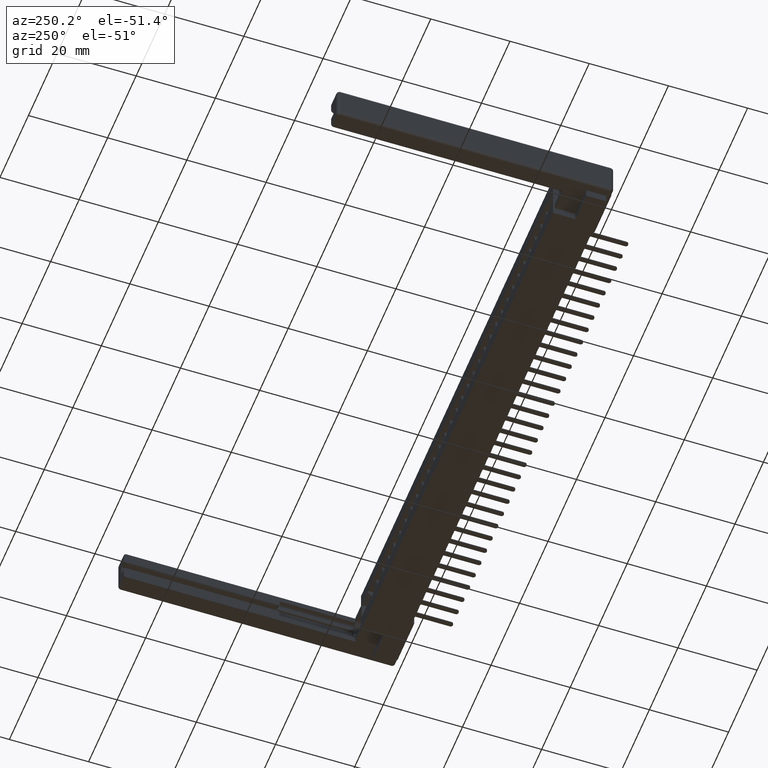
[diagram: clean part render]
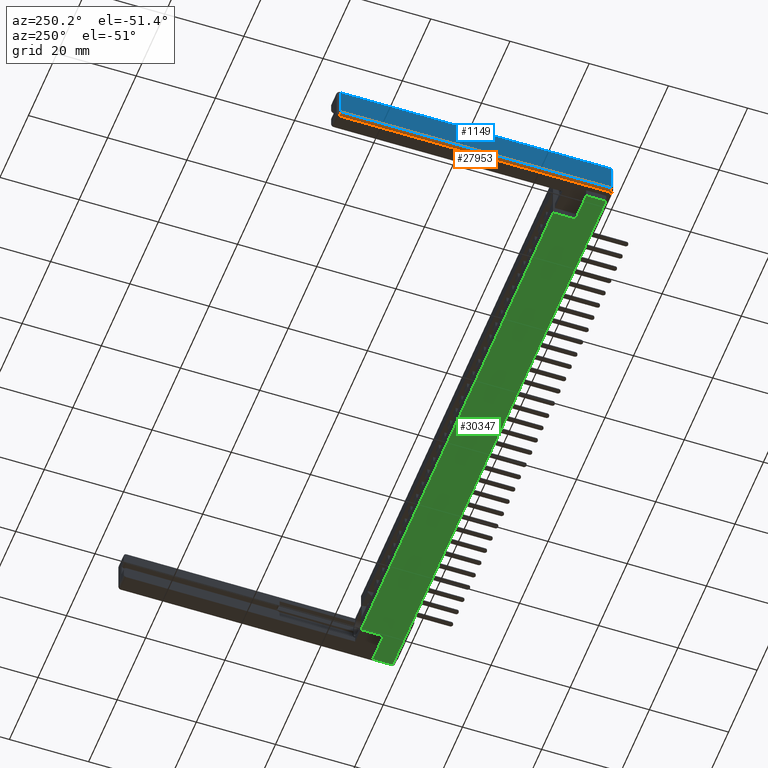
[diagram: same view with three faces highlighted in distinct colors, each labeled with its STEP entity id]
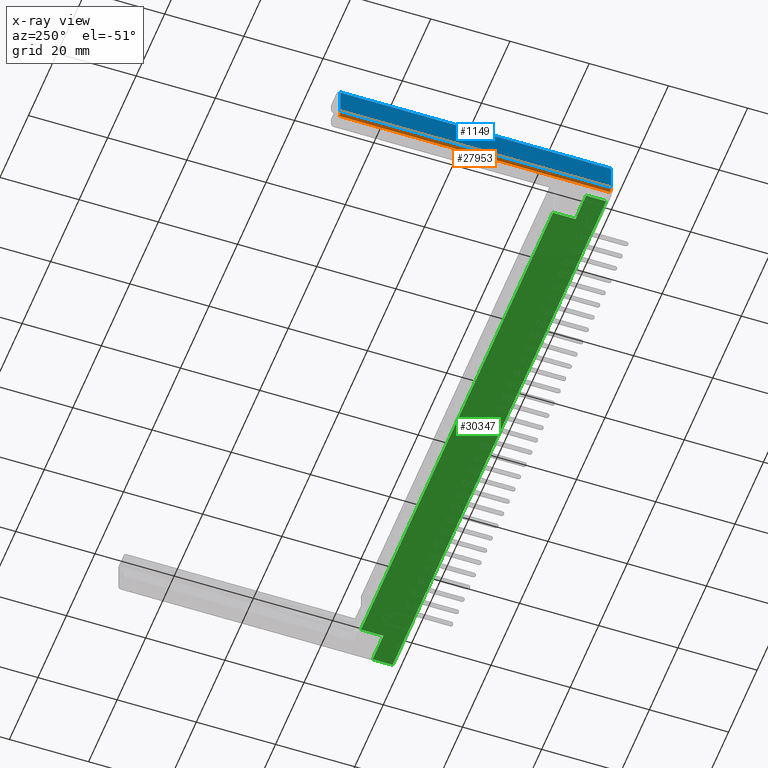
[diagram: x-ray of the same camera — body ghosted, the three highlighted faces saturated]
A machine part, auxiliary view with three faces highlighted in distinct colors.
The next image is the same camera in x-ray (body ghosted, the three faces saturated) — at least one of them is partly hidden behind the body in this view.
Their STEP definitions:

[orange] entity #27953 — the highlighted cylindrical surface (edge-blend (fillet) strip) has radius 0.762 mm, axis along (0, -1, 0).
#485 = VERTEX_POINT ( 'NONE', #16023 ) ;
#1686 = VERTEX_POINT ( 'NONE', #28137 ) ;
#2734 = CARTESIAN_POINT ( 'NONE',  ( 0.02999999999999999889, 0.02999999999999999195, -0.3430000000000000271 ) ) ;
#4556 = CARTESIAN_POINT ( 'NONE',  ( 0.02999999999999999889, 2.719999999999999751, -0.3430000000000000271 ) ) ;
#5315 = CIRCLE ( 'NONE', #23573, 0.02999999999999998848 ) ;
#5497 = LINE ( 'NONE', #7697, #21576 ) ;
#7260 = EDGE_CURVE ( 'NONE', #485, #1686, #28171, .T. ) ;
#7697 = CARTESIAN_POINT ( 'NONE',  ( 0.02999999999999999889, 0.0000000000000000000, -0.3430000000000000271 ) ) ;
#7960 = ORIENTED_EDGE ( 'NONE', *, *, #27625, .T. ) ;
#10613 = DIRECTION ( 'NONE',  ( -0.0000000000000000000, -1.000000000000000000, -1.422837496700136230E-16 ) ) ;
#12471 = EDGE_CURVE ( 'NONE', #29930, #30712, #5497, .T. ) ;
#12830 = CARTESIAN_POINT ( 'NONE',  ( 0.02999999999999999889, 0.02999999999999998848, -0.3130000000000000004 ) ) ;
#13423 = EDGE_CURVE ( 'NONE', #1686, #29930, #19078, .T. ) ;
#13857 = CARTESIAN_POINT ( 'NONE',  ( 0.02999999999999999889, 0.0000000000000000000, -0.3130000000000000004 ) ) ;
#14218 = CARTESIAN_POINT ( 'NONE',  ( 0.02999999999999999889, 2.719999999999999751, -0.3130000000000000004 ) ) ;
#14445 = AXIS2_PLACEMENT_3D ( 'NONE', #13857, #26124, #16256 ) ;
#16007 = AXIS2_PLACEMENT_3D ( 'NONE', #12830, #10613, #20347 ) ;
#16023 = CARTESIAN_POINT ( 'NONE',  ( 0.0000000000000000000, 2.719999999999999751, -0.3130000000000000004 ) ) ;
#16256 = DIRECTION ( 'NONE',  ( 0.0000000000000000000, 0.0000000000000000000, -1.000000000000000000 ) ) ;
#16293 = DIRECTION ( 'NONE',  ( -0.0000000000000000000, -1.000000000000000000, -0.0000000000000000000 ) ) ;
#19078 = CIRCLE ( 'NONE', #16007, 0.03000000000000002318 ) ;
#20347 = DIRECTION ( 'NONE',  ( 0.0000000000000000000, 1.422837496700135984E-16, -1.000000000000000000 ) ) ;
#20885 = DIRECTION ( 'NONE',  ( 0.0000000000000000000, -1.000000000000000000, 0.0000000000000000000 ) ) ;
#21556 = ORIENTED_EDGE ( 'NONE', *, *, #12471, .F. ) ;
#21576 = VECTOR ( 'NONE', #24856, 39.37007874015748143 ) ;
#23415 = CARTESIAN_POINT ( 'NONE',  ( 0.0000000000000000000, 0.0000000000000000000, -0.3130000000000000004 ) ) ;
#23421 = VECTOR ( 'NONE', #20885, 39.37007874015748143 ) ;
#23573 = AXIS2_PLACEMENT_3D ( 'NONE', #14218, #16293, #28853 ) ;
#24856 = DIRECTION ( 'NONE',  ( -0.0000000000000000000, 1.000000000000000000, -0.0000000000000000000 ) ) ;
#26124 = DIRECTION ( 'NONE',  ( 0.0000000000000000000, -1.000000000000000000, 0.0000000000000000000 ) ) ;
#27625 = EDGE_CURVE ( 'NONE', #485, #30712, #5315, .T. ) ;
#27903 = EDGE_LOOP ( 'NONE', ( #7960, #21556, #28135, #31206 ) ) ;
#27953 = ADVANCED_FACE ( 'NONE', ( #28339 ), #28965, .T. ) ;
#28135 = ORIENTED_EDGE ( 'NONE', *, *, #13423, .F. ) ;
#28137 = CARTESIAN_POINT ( 'NONE',  ( 0.0000000000000000000, 0.02999999999999998848, -0.3130000000000000004 ) ) ;
#28171 = LINE ( 'NONE', #23415, #23421 ) ;
#28339 = FACE_OUTER_BOUND ( 'NONE', #27903, .T. ) ;
#28853 = DIRECTION ( 'NONE',  ( 0.0000000000000000000, 0.0000000000000000000, 1.000000000000000000 ) ) ;
#28965 = CYLINDRICAL_SURFACE ( 'NONE', #14445, 0.03000000000000002318 ) ;
#29930 = VERTEX_POINT ( 'NONE', #2734 ) ;
#30712 = VERTEX_POINT ( 'NONE', #4556 ) ;
#31206 = ORIENTED_EDGE ( 'NONE', *, *, #7260, .F. ) ;

[blue] entity #1149 — the highlighted planar face has unit normal (-1, 0, 0).
#485 = VERTEX_POINT ( 'NONE', #16023 ) ;
#570 = DIRECTION ( 'NONE',  ( -0.0000000000000000000, 1.000000000000000000, -0.0000000000000000000 ) ) ;
#728 = DIRECTION ( 'NONE',  ( 0.0000000000000000000, 0.0000000000000000000, 1.000000000000000000 ) ) ;
#1149 = ADVANCED_FACE ( 'NONE', ( #8338 ), #5666, .T. ) ;
#1686 = VERTEX_POINT ( 'NONE', #28137 ) ;
#3305 = VECTOR ( 'NONE', #23084, 39.37007874015748143 ) ;
#4840 = EDGE_CURVE ( 'NONE', #19654, #12411, #29645, .T. ) ;
#5466 = DIRECTION ( 'NONE',  ( -0.0000000000000000000, -0.0000000000000000000, -1.000000000000000000 ) ) ;
#5524 = DIRECTION ( 'NONE',  ( -1.000000000000000000, 0.0000000000000000000, 0.0000000000000000000 ) ) ;
#5666 = PLANE ( 'NONE',  #6471 ) ;
#6315 = CARTESIAN_POINT ( 'NONE',  ( 0.0000000000000000000, 0.02999999999999998848, -0.02999999999999999889 ) ) ;
#6471 = AXIS2_PLACEMENT_3D ( 'NONE', #20447, #5524, #728 ) ;
#7108 = ORIENTED_EDGE ( 'NONE', *, *, #4840, .T. ) ;
#7260 = EDGE_CURVE ( 'NONE', #485, #1686, #28171, .T. ) ;
#8338 = FACE_OUTER_BOUND ( 'NONE', #13654, .T. ) ;
#9424 = ORIENTED_EDGE ( 'NONE', *, *, #7260, .T. ) ;
#10419 = CARTESIAN_POINT ( 'NONE',  ( 0.0000000000000000000, 2.750000000000000000, -0.02999999999999999889 ) ) ;
#11285 = ORIENTED_EDGE ( 'NONE', *, *, #30951, .T. ) ;
#12295 = VECTOR ( 'NONE', #5466, 39.37007874015748143 ) ;
#12411 = VERTEX_POINT ( 'NONE', #14677 ) ;
#13654 = EDGE_LOOP ( 'NONE', ( #9424, #11285, #7108, #27639 ) ) ;
#14112 = VECTOR ( 'NONE', #570, 39.37007874015748143 ) ;
#14677 = CARTESIAN_POINT ( 'NONE',  ( 0.0000000000000000000, 2.719999999999999751, -0.02999999999999999889 ) ) ;
#15605 = CARTESIAN_POINT ( 'NONE',  ( 0.0000000000000000000, 0.02999999999999998848, -0.3430000000000000271 ) ) ;
#16023 = CARTESIAN_POINT ( 'NONE',  ( 0.0000000000000000000, 2.719999999999999751, -0.3130000000000000004 ) ) ;
#19654 = VERTEX_POINT ( 'NONE', #6315 ) ;
#20238 = CARTESIAN_POINT ( 'NONE',  ( 0.0000000000000000000, 2.719999999999999751, -0.3430000000000000271 ) ) ;
#20447 = CARTESIAN_POINT ( 'NONE',  ( 0.0000000000000000000, 0.0000000000000000000, -0.3430000000000000271 ) ) ;
#20566 = LINE ( 'NONE', #15605, #3305 ) ;
#20885 = DIRECTION ( 'NONE',  ( 0.0000000000000000000, -1.000000000000000000, 0.0000000000000000000 ) ) ;
#23084 = DIRECTION ( 'NONE',  ( 0.0000000000000000000, 0.0000000000000000000, 1.000000000000000000 ) ) ;
#23415 = CARTESIAN_POINT ( 'NONE',  ( 0.0000000000000000000, 0.0000000000000000000, -0.3130000000000000004 ) ) ;
#23421 = VECTOR ( 'NONE', #20885, 39.37007874015748143 ) ;
#25771 = EDGE_CURVE ( 'NONE', #12411, #485, #27822, .T. ) ;
#27639 = ORIENTED_EDGE ( 'NONE', *, *, #25771, .T. ) ;
#27822 = LINE ( 'NONE', #20238, #12295 ) ;
#28137 = CARTESIAN_POINT ( 'NONE',  ( 0.0000000000000000000, 0.02999999999999998848, -0.3130000000000000004 ) ) ;
#28171 = LINE ( 'NONE', #23415, #23421 ) ;
#29645 = LINE ( 'NONE', #10419, #14112 ) ;
#30951 = EDGE_CURVE ( 'NONE', #1686, #19654, #20566, .T. ) ;

[green] entity #30347 — the highlighted planar face has unit normal (0, 0, 1).
#340 = VECTOR ( 'NONE', #13836, 39.37007874015748143 ) ;
#1374 = ORIENTED_EDGE ( 'NONE', *, *, #28287, .T. ) ;
#1742 = DIRECTION ( 'NONE',  ( -0.0000000000000000000, 1.000000000000000000, -0.0000000000000000000 ) ) ;
#2156 = VECTOR ( 'NONE', #21708, 39.37007874015748143 ) ;
#2394 = CARTESIAN_POINT ( 'NONE',  ( 0.0000000000000000000, 0.4729999999999999760, -0.5000000000000000000 ) ) ;
#2484 = CARTESIAN_POINT ( 'NONE',  ( 0.0000000000000000000, 0.4729999999999999760, -0.5000000000000000000 ) ) ;
#2575 = ORIENTED_EDGE ( 'NONE', *, *, #30223, .F. ) ;
#2860 = PLANE ( 'NONE',  #14930 ) ;
#2988 = VECTOR ( 'NONE', #4579, 39.37007874015748143 ) ;
#3205 = VECTOR ( 'NONE', #11837, 39.37007874015748143 ) ;
#4137 = ORIENTED_EDGE ( 'NONE', *, *, #19822, .F. ) ;
#4197 = CARTESIAN_POINT ( 'NONE',  ( 0.0000000000000000000, 0.2499999999999999722, -0.5000000000000000000 ) ) ;
#4467 = CARTESIAN_POINT ( 'NONE',  ( 0.2979999999999999316, 0.2499999999999999722, -0.5000000000000000000 ) ) ;
#4497 = VERTEX_POINT ( 'NONE', #7779 ) ;
#4579 = DIRECTION ( 'NONE',  ( 1.000000000000000000, 0.0000000000000000000, 0.0000000000000000000 ) ) ;
#4994 = DIRECTION ( 'NONE',  ( -1.000000000000000000, 0.0000000000000000000, 0.0000000000000000000 ) ) ;
#5856 = VERTEX_POINT ( 'NONE', #20348 ) ;
#6226 = DIRECTION ( 'NONE',  ( -0.0000000000000000000, -1.000000000000000000, -0.0000000000000000000 ) ) ;
#6360 = VECTOR ( 'NONE', #6226, 39.37007874015748143 ) ;
#7180 = EDGE_CURVE ( 'NONE', #20625, #5856, #29102, .T. ) ;
#7362 = CARTESIAN_POINT ( 'NONE',  ( 0.0000000000000000000, 0.2499999999999999722, -0.5000000000000000000 ) ) ;
#7779 = CARTESIAN_POINT ( 'NONE',  ( 5.599999999999999645, 0.2499999999999999722, -0.5000000000000000000 ) ) ;
#8581 = ORIENTED_EDGE ( 'NONE', *, *, #28840, .F. ) ;
#9090 = LINE ( 'NONE', #4197, #340 ) ;
#9421 = CARTESIAN_POINT ( 'NONE',  ( 0.2979999999999999316, 0.4729999999999999760, -0.5000000000000000000 ) ) ;
#9662 = CARTESIAN_POINT ( 'NONE',  ( 5.599999999999999645, 0.4729999999999999760, -0.5000000000000000000 ) ) ;
#9985 = EDGE_CURVE ( 'NONE', #20625, #27257, #21100, .T. ) ;
#11349 = CARTESIAN_POINT ( 'NONE',  ( 5.897999999999998799, 0.05099999999999999672, -0.5000000000000000000 ) ) ;
#11837 = DIRECTION ( 'NONE',  ( -0.0000000000000000000, 1.000000000000000000, -0.0000000000000000000 ) ) ;
#13350 = CARTESIAN_POINT ( 'NONE',  ( 5.897999999999998799, 0.4729999999999999760, -0.5000000000000000000 ) ) ;
#13640 = ORIENTED_EDGE ( 'NONE', *, *, #14124, .F. ) ;
#13836 = DIRECTION ( 'NONE',  ( -1.000000000000000000, 0.0000000000000000000, 0.0000000000000000000 ) ) ;
#14124 = EDGE_CURVE ( 'NONE', #21693, #4497, #9090, .T. ) ;
#14228 = DIRECTION ( 'NONE',  ( -0.0000000000000000000, -1.000000000000000000, -0.0000000000000000000 ) ) ;
#14373 = LINE ( 'NONE', #2484, #2156 ) ;
#14930 = AXIS2_PLACEMENT_3D ( 'NONE', #2394, #19579, #29055 ) ;
#15135 = CARTESIAN_POINT ( 'NONE',  ( 5.897999999999998799, 0.2499999999999999722, -0.5000000000000000000 ) ) ;
#15902 = ORIENTED_EDGE ( 'NONE', *, *, #7180, .F. ) ;
#16342 = LINE ( 'NONE', #30639, #31123 ) ;
#18297 = LINE ( 'NONE', #13350, #6360 ) ;
#18956 = VERTEX_POINT ( 'NONE', #11349 ) ;
#19183 = LINE ( 'NONE', #31392, #2988 ) ;
#19373 = VECTOR ( 'NONE', #4994, 39.37007874015748143 ) ;
#19579 = DIRECTION ( 'NONE',  ( 0.0000000000000000000, 0.0000000000000000000, 1.000000000000000000 ) ) ;
#19822 = EDGE_CURVE ( 'NONE', #29694, #18956, #19183, .T. ) ;
#20185 = ORIENTED_EDGE ( 'NONE', *, *, #23812, .F. ) ;
#20348 = CARTESIAN_POINT ( 'NONE',  ( 0.0000000000000000000, 0.2499999999999999722, -0.5000000000000000000 ) ) ;
#20625 = VERTEX_POINT ( 'NONE', #4467 ) ;
#21100 = LINE ( 'NONE', #30758, #3205 ) ;
#21693 = VERTEX_POINT ( 'NONE', #15135 ) ;
#21708 = DIRECTION ( 'NONE',  ( -1.000000000000000000, -0.0000000000000000000, -0.0000000000000000000 ) ) ;
#22495 = EDGE_LOOP ( 'NONE', ( #1374, #4137, #8581, #15902, #26315, #20185, #2575, #13640 ) ) ;
#22819 = FACE_OUTER_BOUND ( 'NONE', #22495, .T. ) ;
#23631 = CARTESIAN_POINT ( 'NONE',  ( 0.0000000000000000000, 0.4729999999999999760, -0.5000000000000000000 ) ) ;
#23812 = EDGE_CURVE ( 'NONE', #28515, #27257, #14373, .T. ) ;
#24104 = LINE ( 'NONE', #23631, #27694 ) ;
#26315 = ORIENTED_EDGE ( 'NONE', *, *, #9985, .T. ) ;
#27257 = VERTEX_POINT ( 'NONE', #9421 ) ;
#27694 = VECTOR ( 'NONE', #14228, 39.37007874015748143 ) ;
#28287 = EDGE_CURVE ( 'NONE', #21693, #18956, #18297, .T. ) ;
#28515 = VERTEX_POINT ( 'NONE', #9662 ) ;
#28840 = EDGE_CURVE ( 'NONE', #5856, #29694, #24104, .T. ) ;
#29055 = DIRECTION ( 'NONE',  ( 1.000000000000000000, 0.0000000000000000000, -0.0000000000000000000 ) ) ;
#29102 = LINE ( 'NONE', #7362, #19373 ) ;
#29694 = VERTEX_POINT ( 'NONE', #30065 ) ;
#30065 = CARTESIAN_POINT ( 'NONE',  ( 0.0000000000000000000, 0.05099999999999999672, -0.5000000000000000000 ) ) ;
#30223 = EDGE_CURVE ( 'NONE', #4497, #28515, #16342, .T. ) ;
#30347 = ADVANCED_FACE ( 'NONE', ( #22819 ), #2860, .F. ) ;
#30639 = CARTESIAN_POINT ( 'NONE',  ( 5.599999999999999645, 0.2499999999999999722, -0.5000000000000000000 ) ) ;
#30758 = CARTESIAN_POINT ( 'NONE',  ( 0.2979999999999999316, 0.2499999999999999722, -0.5000000000000000000 ) ) ;
#31123 = VECTOR ( 'NONE', #1742, 39.37007874015748143 ) ;
#31392 = CARTESIAN_POINT ( 'NONE',  ( 0.4730000000000003646, 0.05099999999999999672, -0.5000000000000006661 ) ) ;